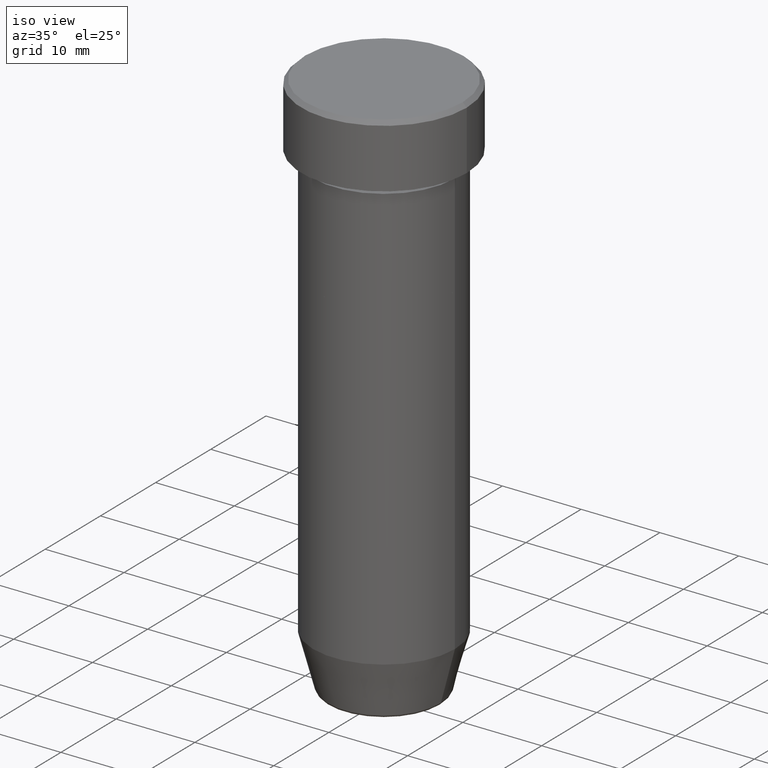
[diagram: clean part render]
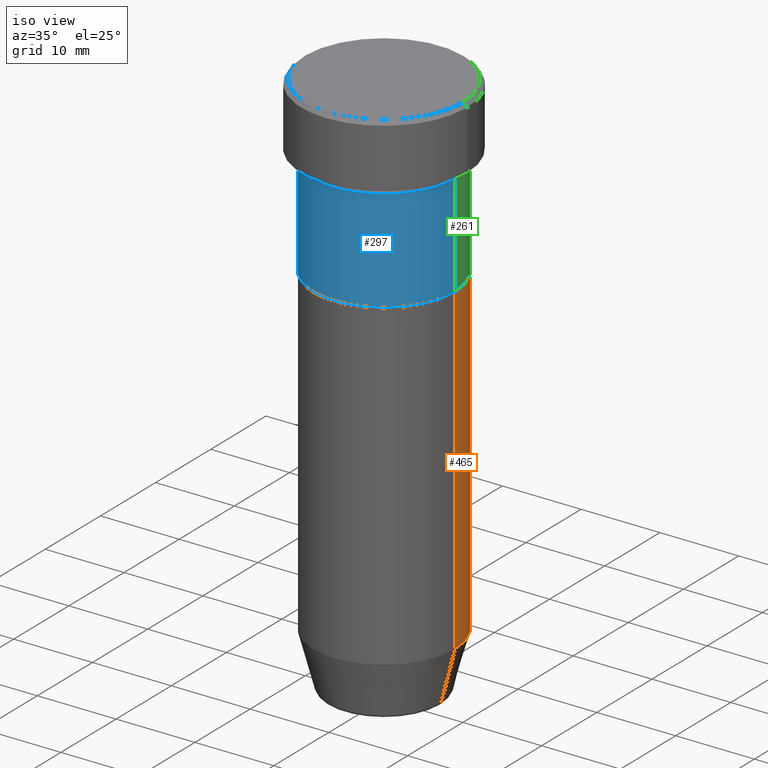
[diagram: same view with three faces highlighted in distinct colors, each labeled with its STEP entity id]
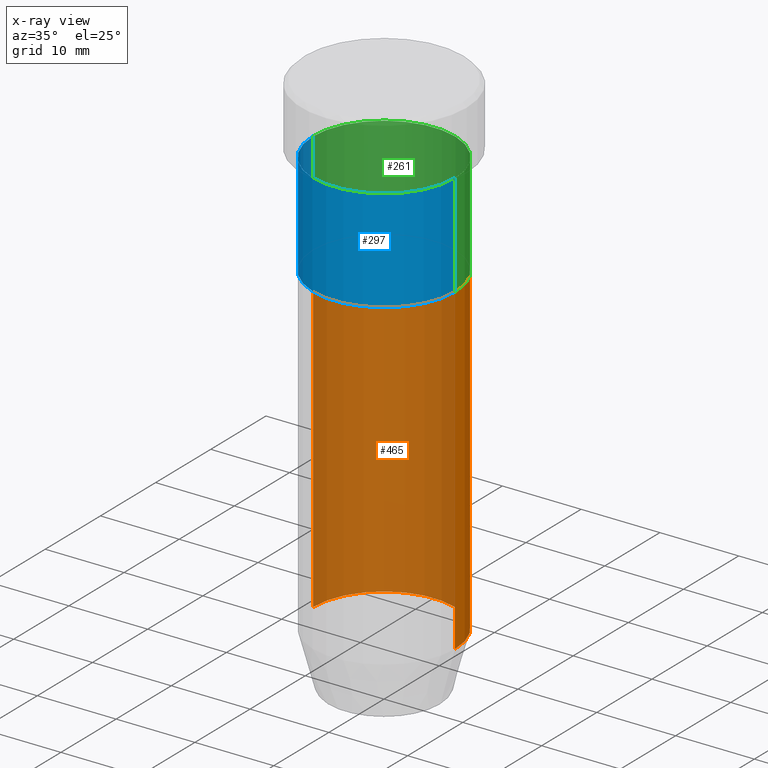
[diagram: x-ray of the same camera — body ghosted, the three highlighted faces saturated]
A machine part, iso view with three faces highlighted in distinct colors.
The next image is the same camera in x-ray (body ghosted, the three faces saturated) — at least one of them is partly hidden behind the body in this view.
Their STEP definitions:

[orange] entity #465 — the highlighted cylindrical surface (partial cylindrical patch) has radius 9 mm, axis along (-0, -0, 1).
#15 = AXIS2_PLACEMENT_3D ( 'NONE', #400, #403, #258 ) ;
#32 = CARTESIAN_POINT ( 'NONE',  ( -9.000000000000000000, 1.102182119232617714E-15, -63.00000000000000000 ) ) ;
#48 = CARTESIAN_POINT ( 'NONE',  ( 0.000000000000000000, 0.000000000000000000, -22.00000000000000000 ) ) ;
#50 = CIRCLE ( 'NONE', #15, 9.000000000000000000 ) ;
#58 = VERTEX_POINT ( 'NONE', #240 ) ;
#90 = CARTESIAN_POINT ( 'NONE',  ( 0.000000000000000000, 0.000000000000000000, 0.000000000000000000 ) ) ;
#96 = CARTESIAN_POINT ( 'NONE',  ( -9.000000000000000000, 1.102182119232617714E-15, -22.00000000000000000 ) ) ;
#124 = ORIENTED_EDGE ( 'NONE', *, *, #138, .T. ) ;
#138 = EDGE_CURVE ( 'NONE', #289, #460, #524, .T. ) ;
#142 = CYLINDRICAL_SURFACE ( 'NONE', #192, 9.000000000000000000 ) ;
#151 = EDGE_CURVE ( 'NONE', #58, #289, #50, .T. ) ;
#164 = CARTESIAN_POINT ( 'NONE',  ( -9.000000000000000000, 1.102182119232617714E-15, 0.000000000000000000 ) ) ;
#187 = LINE ( 'NONE', #542, #293 ) ;
#192 = AXIS2_PLACEMENT_3D ( 'NONE', #90, #515, #430 ) ;
#193 = DIRECTION ( 'NONE',  ( -0.000000000000000000, -0.000000000000000000, 1.000000000000000000 ) ) ;
#240 = CARTESIAN_POINT ( 'NONE',  ( 9.000000000000000000, 0.000000000000000000, -63.00000000000000000 ) ) ;
#258 = DIRECTION ( 'NONE',  ( 1.000000000000000000, 0.000000000000000000, 0.000000000000000000 ) ) ;
#263 = ORIENTED_EDGE ( 'NONE', *, *, #343, .F. ) ;
#271 = DIRECTION ( 'NONE',  ( -0.000000000000000000, -0.000000000000000000, 1.000000000000000000 ) ) ;
#276 = ORIENTED_EDGE ( 'NONE', *, *, #477, .F. ) ;
#287 = EDGE_LOOP ( 'NONE', ( #300, #124, #276, #263 ) ) ;
#289 = VERTEX_POINT ( 'NONE', #32 ) ;
#293 = VECTOR ( 'NONE', #271, 1000.000000000000000 ) ;
#300 = ORIENTED_EDGE ( 'NONE', *, *, #151, .T. ) ;
#343 = EDGE_CURVE ( 'NONE', #58, #591, #187, .T. ) ;
#356 = DIRECTION ( 'NONE',  ( -0.000000000000000000, -0.000000000000000000, 1.000000000000000000 ) ) ;
#382 = DIRECTION ( 'NONE',  ( 1.000000000000000000, 0.000000000000000000, 0.000000000000000000 ) ) ;
#398 = AXIS2_PLACEMENT_3D ( 'NONE', #48, #193, #382 ) ;
#400 = CARTESIAN_POINT ( 'NONE',  ( 0.000000000000000000, 0.000000000000000000, -63.00000000000000000 ) ) ;
#403 = DIRECTION ( 'NONE',  ( -0.000000000000000000, -0.000000000000000000, 1.000000000000000000 ) ) ;
#430 = DIRECTION ( 'NONE',  ( 1.000000000000000000, 0.000000000000000000, 0.000000000000000000 ) ) ;
#460 = VERTEX_POINT ( 'NONE', #96 ) ;
#462 = VECTOR ( 'NONE', #356, 1000.000000000000000 ) ;
#465 = ADVANCED_FACE ( 'NONE', ( #478 ), #142, .T. ) ;
#477 = EDGE_CURVE ( 'NONE', #591, #460, #510, .T. ) ;
#478 = FACE_OUTER_BOUND ( 'NONE', #287, .T. ) ;
#484 = CARTESIAN_POINT ( 'NONE',  ( 9.000000000000000000, 0.000000000000000000, -22.00000000000000000 ) ) ;
#510 = CIRCLE ( 'NONE', #398, 9.000000000000000000 ) ;
#515 = DIRECTION ( 'NONE',  ( -0.000000000000000000, -0.000000000000000000, 1.000000000000000000 ) ) ;
#524 = LINE ( 'NONE', #164, #462 ) ;
#542 = CARTESIAN_POINT ( 'NONE',  ( 9.000000000000000000, 0.000000000000000000, 0.000000000000000000 ) ) ;
#591 = VERTEX_POINT ( 'NONE', #484 ) ;

[blue] entity #297 — the highlighted cylindrical surface (partial cylindrical patch) has radius 9 mm, axis along (-0, -0, 1).
#9 = EDGE_CURVE ( 'NONE', #576, #27, #436, .T. ) ;
#27 = VERTEX_POINT ( 'NONE', #269 ) ;
#29 = DIRECTION ( 'NONE',  ( -0.000000000000000000, -0.000000000000000000, 1.000000000000000000 ) ) ;
#35 = CARTESIAN_POINT ( 'NONE',  ( 0.000000000000000000, 0.000000000000000000, 0.000000000000000000 ) ) ;
#41 = ORIENTED_EDGE ( 'NONE', *, *, #328, .T. ) ;
#49 = CARTESIAN_POINT ( 'NONE',  ( -9.000000000000000000, 1.102182119232617714E-15, 0.000000000000000000 ) ) ;
#78 = LINE ( 'NONE', #183, #184 ) ;
#80 = CARTESIAN_POINT ( 'NONE',  ( 9.000000000000000000, 0.000000000000000000, -9.000000000000001776 ) ) ;
#92 = CIRCLE ( 'NONE', #146, 9.000000000000000000 ) ;
#110 = DIRECTION ( 'NONE',  ( 1.000000000000000000, 0.000000000000000000, 0.000000000000000000 ) ) ;
#121 = EDGE_CURVE ( 'NONE', #576, #412, #482, .T. ) ;
#129 = AXIS2_PLACEMENT_3D ( 'NONE', #35, #29, #415 ) ;
#146 = AXIS2_PLACEMENT_3D ( 'NONE', #349, #529, #110 ) ;
#165 = CARTESIAN_POINT ( 'NONE',  ( 0.000000000000000000, 0.000000000000000000, -22.00000000000000000 ) ) ;
#172 = VECTOR ( 'NONE', #438, 1000.000000000000000 ) ;
#183 = CARTESIAN_POINT ( 'NONE',  ( 9.000000000000000000, 0.000000000000000000, 0.000000000000000000 ) ) ;
#184 = VECTOR ( 'NONE', #505, 1000.000000000000000 ) ;
#205 = CARTESIAN_POINT ( 'NONE',  ( -9.000000000000000000, 1.102182119232617714E-15, -22.00000000000000000 ) ) ;
#252 = EDGE_CURVE ( 'NONE', #412, #319, #92, .T. ) ;
#259 = DIRECTION ( 'NONE',  ( 1.000000000000000000, 0.000000000000000000, 0.000000000000000000 ) ) ;
#269 = CARTESIAN_POINT ( 'NONE',  ( 9.000000000000000000, 0.000000000000000000, -22.00000000000000000 ) ) ;
#297 = ADVANCED_FACE ( 'NONE', ( #330 ), #470, .T. ) ;
#319 = VERTEX_POINT ( 'NONE', #80 ) ;
#328 = EDGE_CURVE ( 'NONE', #27, #319, #78, .T. ) ;
#330 = FACE_OUTER_BOUND ( 'NONE', #426, .T. ) ;
#349 = CARTESIAN_POINT ( 'NONE',  ( 0.000000000000000000, 0.000000000000000000, -9.000000000000001776 ) ) ;
#404 = DIRECTION ( 'NONE',  ( -0.000000000000000000, -0.000000000000000000, 1.000000000000000000 ) ) ;
#412 = VERTEX_POINT ( 'NONE', #597 ) ;
#415 = DIRECTION ( 'NONE',  ( 1.000000000000000000, 0.000000000000000000, 0.000000000000000000 ) ) ;
#426 = EDGE_LOOP ( 'NONE', ( #468, #535, #41, #554 ) ) ;
#436 = CIRCLE ( 'NONE', #507, 9.000000000000000000 ) ;
#438 = DIRECTION ( 'NONE',  ( -0.000000000000000000, -0.000000000000000000, 1.000000000000000000 ) ) ;
#468 = ORIENTED_EDGE ( 'NONE', *, *, #121, .F. ) ;
#470 = CYLINDRICAL_SURFACE ( 'NONE', #129, 9.000000000000000000 ) ;
#482 = LINE ( 'NONE', #49, #172 ) ;
#505 = DIRECTION ( 'NONE',  ( -0.000000000000000000, -0.000000000000000000, 1.000000000000000000 ) ) ;
#507 = AXIS2_PLACEMENT_3D ( 'NONE', #165, #404, #259 ) ;
#529 = DIRECTION ( 'NONE',  ( -0.000000000000000000, -0.000000000000000000, 1.000000000000000000 ) ) ;
#535 = ORIENTED_EDGE ( 'NONE', *, *, #9, .T. ) ;
#554 = ORIENTED_EDGE ( 'NONE', *, *, #252, .F. ) ;
#576 = VERTEX_POINT ( 'NONE', #205 ) ;
#597 = CARTESIAN_POINT ( 'NONE',  ( -9.000000000000000000, 1.102182119232617714E-15, -9.000000000000001776 ) ) ;

[green] entity #261 — the highlighted cylindrical surface (partial cylindrical patch) has radius 9 mm, axis along (-0, -0, 1).
#27 = VERTEX_POINT ( 'NONE', #269 ) ;
#49 = CARTESIAN_POINT ( 'NONE',  ( -9.000000000000000000, 1.102182119232617714E-15, 0.000000000000000000 ) ) ;
#56 = EDGE_CURVE ( 'NONE', #27, #576, #446, .T. ) ;
#78 = LINE ( 'NONE', #183, #184 ) ;
#80 = CARTESIAN_POINT ( 'NONE',  ( 9.000000000000000000, 0.000000000000000000, -9.000000000000001776 ) ) ;
#121 = EDGE_CURVE ( 'NONE', #576, #412, #482, .T. ) ;
#158 = AXIS2_PLACEMENT_3D ( 'NONE', #278, #545, #239 ) ;
#172 = VECTOR ( 'NONE', #438, 1000.000000000000000 ) ;
#176 = EDGE_LOOP ( 'NONE', ( #232, #498, #565, #178 ) ) ;
#178 = ORIENTED_EDGE ( 'NONE', *, *, #328, .F. ) ;
#181 = AXIS2_PLACEMENT_3D ( 'NONE', #185, #548, #225 ) ;
#183 = CARTESIAN_POINT ( 'NONE',  ( 9.000000000000000000, 0.000000000000000000, 0.000000000000000000 ) ) ;
#184 = VECTOR ( 'NONE', #505, 1000.000000000000000 ) ;
#185 = CARTESIAN_POINT ( 'NONE',  ( 0.000000000000000000, 0.000000000000000000, -22.00000000000000000 ) ) ;
#190 = CARTESIAN_POINT ( 'NONE',  ( 0.000000000000000000, 0.000000000000000000, -9.000000000000001776 ) ) ;
#205 = CARTESIAN_POINT ( 'NONE',  ( -9.000000000000000000, 1.102182119232617714E-15, -22.00000000000000000 ) ) ;
#225 = DIRECTION ( 'NONE',  ( 1.000000000000000000, 0.000000000000000000, 0.000000000000000000 ) ) ;
#232 = ORIENTED_EDGE ( 'NONE', *, *, #56, .T. ) ;
#239 = DIRECTION ( 'NONE',  ( 1.000000000000000000, 0.000000000000000000, 0.000000000000000000 ) ) ;
#261 = ADVANCED_FACE ( 'NONE', ( #499 ), #365, .T. ) ;
#269 = CARTESIAN_POINT ( 'NONE',  ( 9.000000000000000000, 0.000000000000000000, -22.00000000000000000 ) ) ;
#278 = CARTESIAN_POINT ( 'NONE',  ( 0.000000000000000000, 0.000000000000000000, 0.000000000000000000 ) ) ;
#319 = VERTEX_POINT ( 'NONE', #80 ) ;
#321 = AXIS2_PLACEMENT_3D ( 'NONE', #190, #378, #511 ) ;
#328 = EDGE_CURVE ( 'NONE', #27, #319, #78, .T. ) ;
#365 = CYLINDRICAL_SURFACE ( 'NONE', #158, 9.000000000000000000 ) ;
#378 = DIRECTION ( 'NONE',  ( -0.000000000000000000, -0.000000000000000000, 1.000000000000000000 ) ) ;
#412 = VERTEX_POINT ( 'NONE', #597 ) ;
#421 = EDGE_CURVE ( 'NONE', #319, #412, #570, .T. ) ;
#438 = DIRECTION ( 'NONE',  ( -0.000000000000000000, -0.000000000000000000, 1.000000000000000000 ) ) ;
#446 = CIRCLE ( 'NONE', #181, 9.000000000000000000 ) ;
#482 = LINE ( 'NONE', #49, #172 ) ;
#498 = ORIENTED_EDGE ( 'NONE', *, *, #121, .T. ) ;
#499 = FACE_OUTER_BOUND ( 'NONE', #176, .T. ) ;
#505 = DIRECTION ( 'NONE',  ( -0.000000000000000000, -0.000000000000000000, 1.000000000000000000 ) ) ;
#511 = DIRECTION ( 'NONE',  ( 1.000000000000000000, 0.000000000000000000, 0.000000000000000000 ) ) ;
#545 = DIRECTION ( 'NONE',  ( -0.000000000000000000, -0.000000000000000000, 1.000000000000000000 ) ) ;
#548 = DIRECTION ( 'NONE',  ( -0.000000000000000000, -0.000000000000000000, 1.000000000000000000 ) ) ;
#565 = ORIENTED_EDGE ( 'NONE', *, *, #421, .F. ) ;
#570 = CIRCLE ( 'NONE', #321, 9.000000000000000000 ) ;
#576 = VERTEX_POINT ( 'NONE', #205 ) ;
#597 = CARTESIAN_POINT ( 'NONE',  ( -9.000000000000000000, 1.102182119232617714E-15, -9.000000000000001776 ) ) ;